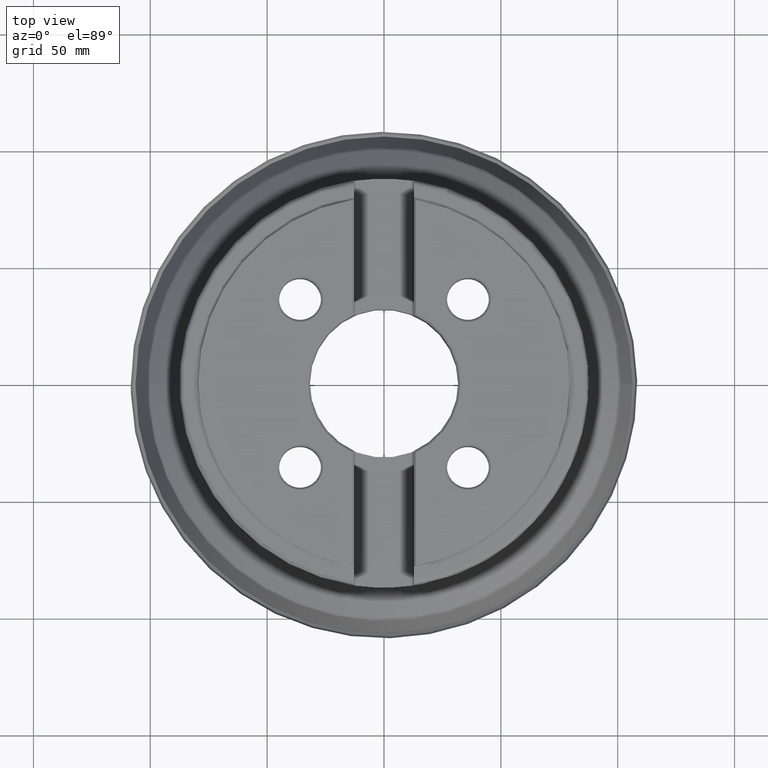
[diagram: clean part render]
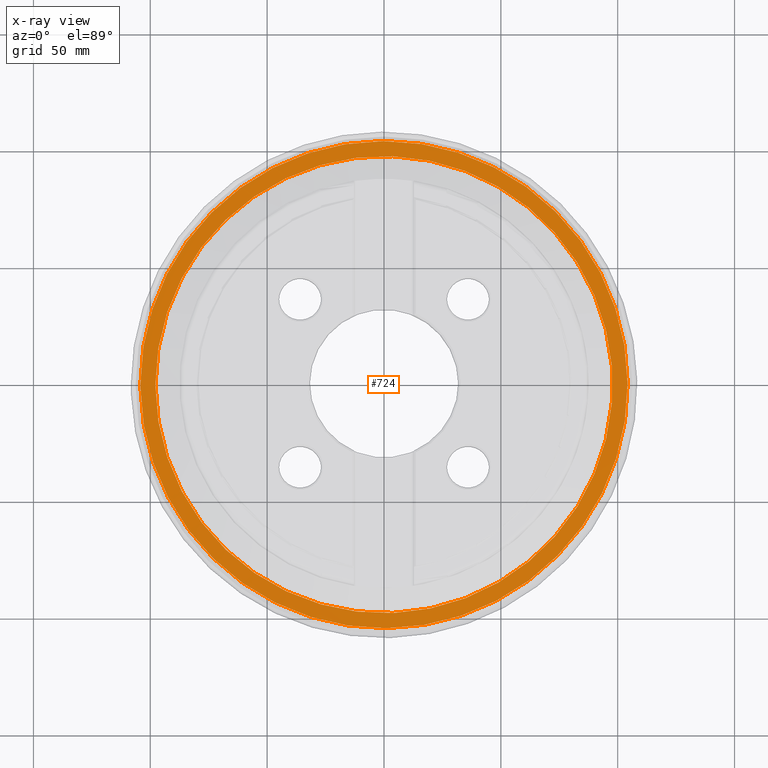
[diagram: x-ray — body ghosted, one internal face saturated and labeled with its STEP entity id]
A machine part, top view, then the same camera in x-ray: the body is ghosted and one INTERNAL B-rep face — a face not visible from any outside direction — is saturated and labeled: STEP entity #724.
In plain terms, the highlighted face is a SurfaceOfRevolution surface.
Its self-contained STEP definition (entity closure, byte-faithful):
#113=SURFACE_OF_REVOLUTION('',#2592,#143);
#143=AXIS1_PLACEMENT('',#4844,#3629);
#724=ADVANCED_FACE('',(#884,#885),#113,.F.);
#884=FACE_BOUND('',#1128,.T.);
#885=FACE_BOUND('',#1129,.T.);
#1128=EDGE_LOOP('',(#1762));
#1129=EDGE_LOOP('',(#1763));
#1762=ORIENTED_EDGE('',*,*,#2323,.T.);
#1763=ORIENTED_EDGE('',*,*,#2324,.F.);
#2006=VERTEX_POINT('',#4830);
#2007=VERTEX_POINT('',#4838);
#2323=EDGE_CURVE('',#2006,#2006,#2500,.T.);
#2324=EDGE_CURVE('',#2007,#2007,#2501,.T.);
#2500=CIRCLE('',#2907,104.241222183764);
#2501=CIRCLE('',#2908,97.805336211137);
#2592=B_SPLINE_CURVE_WITH_KNOTS('',3,(#4839,#4840,#4841,#4842,#4843),
 .UNSPECIFIED.,.F.,.F.,(4,1,4),(0.,0.5,1.),.UNSPECIFIED.);
#2907=AXIS2_PLACEMENT_3D('',#4829,#3624,#3625);
#2908=AXIS2_PLACEMENT_3D('',#4837,#3627,#3628);
#3624=DIRECTION('',(-1.17145536458252E-15,0.,-1.));
#3625=DIRECTION('',(-1.,0.,1.16490041822715E-15));
#3627=DIRECTION('',(-1.17145536458252E-15,0.,-1.));
#3628=DIRECTION('',(-1.,0.,1.1706084130963E-15));
#3629=DIRECTION('',(-1.17145536458252E-15,0.,-1.));
#4829=CARTESIAN_POINT('',(1.71028145087889E-14,0.,14.5996296793467));
#4830=CARTESIAN_POINT('',(-104.241222183764,0.,14.5996296793468));
#4837=CARTESIAN_POINT('',(1.71771567990023E-14,0.,14.6630911585128));
#4838=CARTESIAN_POINT('',(-97.805336211137,0.,14.6630911585129));
#4839=CARTESIAN_POINT('',(-17.88922426562,-96.1553921865431,14.6630911585128));
#4840=CARTESIAN_POINT('',(-17.5629901724944,-97.2124513364725,14.6984819315771));
#4841=CARTESIAN_POINT('',(-17.2277630183629,-99.425838911311,14.7236959978602));
#4842=CARTESIAN_POINT('',(-17.5569539796152,-101.639226486127,14.6555321876162));
#4843=CARTESIAN_POINT('',(-17.8803053363479,-102.696285636063,14.5996296793467));
#4844=CARTESIAN_POINT('',(0.,0.,0.));